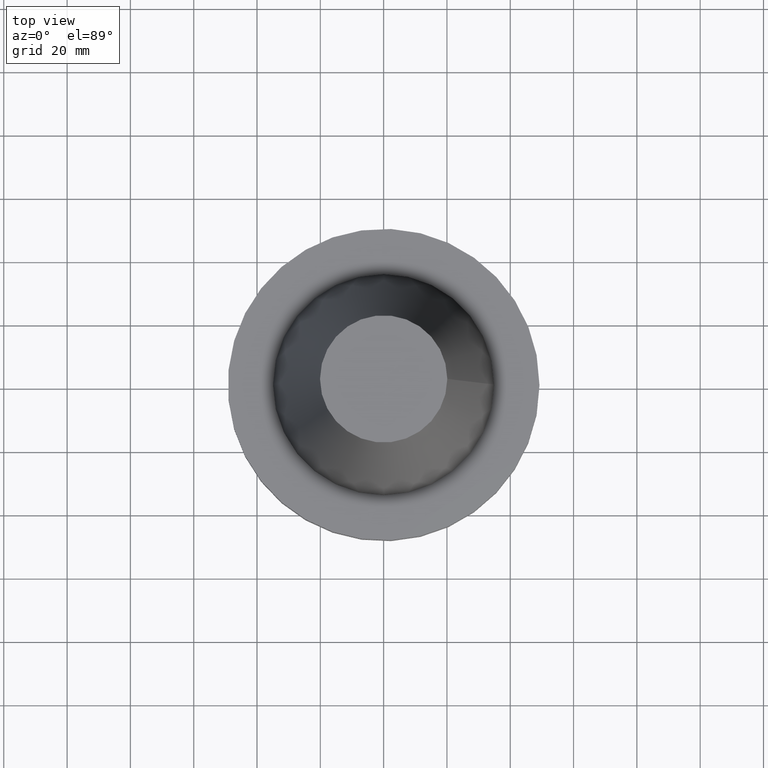
[diagram: clean part render]
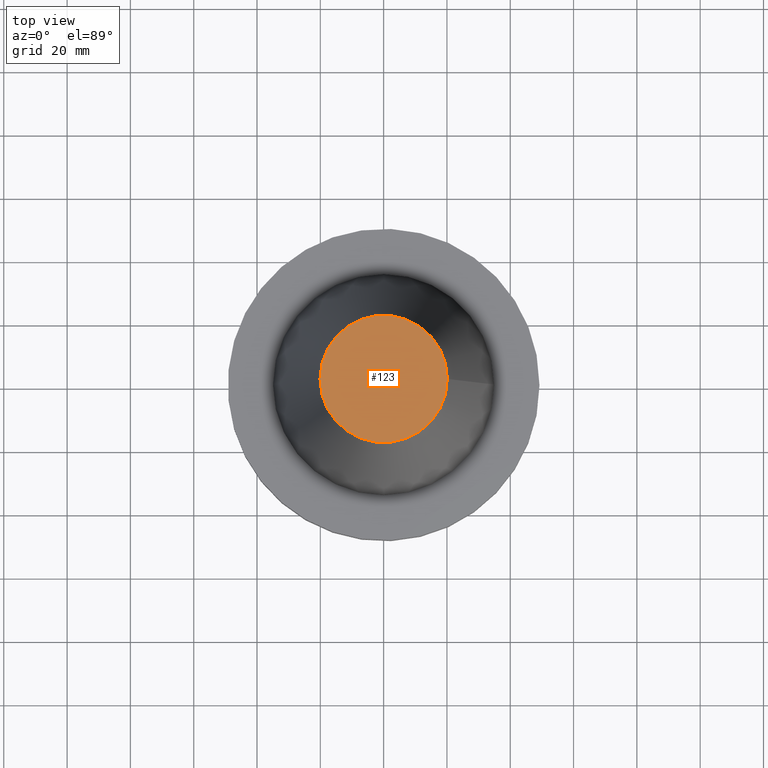
[diagram: same view with one face highlighted and labeled with its STEP entity id]
A machine part, top view. The second image highlights one B-rep face of the part: STEP entity #123.
In plain terms, the highlighted planar face has unit normal (0, 0, -1).
Its self-contained STEP definition (entity closure, byte-faithful):
#31 = EDGE_LOOP ( 'NONE', ( #361 ) ) ;
#67 = CIRCLE ( 'NONE', #392, 20.10819343178871321 ) ;
#70 = PLANE ( 'NONE',  #82 ) ;
#71 = DIRECTION ( 'NONE',  ( -0.000000000000000000, -0.000000000000000000, 1.000000000000000000 ) ) ;
#82 = AXIS2_PLACEMENT_3D ( 'NONE', #246, #316, #162 ) ;
#123 = ADVANCED_FACE ( 'NONE', ( #370 ), #70, .F. ) ;
#159 = EDGE_CURVE ( 'NONE', #270, #270, #67, .T. ) ;
#162 = DIRECTION ( 'NONE',  ( -1.000000000000000000, 0.000000000000000000, -0.000000000000000000 ) ) ;
#194 = DIRECTION ( 'NONE',  ( 1.000000000000000000, 0.000000000000000000, 0.000000000000000000 ) ) ;
#246 = CARTESIAN_POINT ( 'NONE',  ( 0.000000000000000000, 20.10819343178871321, 101.5999999999999943 ) ) ;
#270 = VERTEX_POINT ( 'NONE', #387 ) ;
#316 = DIRECTION ( 'NONE',  ( 0.000000000000000000, 0.000000000000000000, -1.000000000000000000 ) ) ;
#341 = CARTESIAN_POINT ( 'NONE',  ( 0.000000000000000000, 0.000000000000000000, 101.5999999999999801 ) ) ;
#361 = ORIENTED_EDGE ( 'NONE', *, *, #159, .T. ) ;
#370 = FACE_OUTER_BOUND ( 'NONE', #31, .T. ) ;
#387 = CARTESIAN_POINT ( 'NONE',  ( 20.10819343178871321, 0.000000000000000000, 101.5999999999999801 ) ) ;
#392 = AXIS2_PLACEMENT_3D ( 'NONE', #341, #71, #194 ) ;